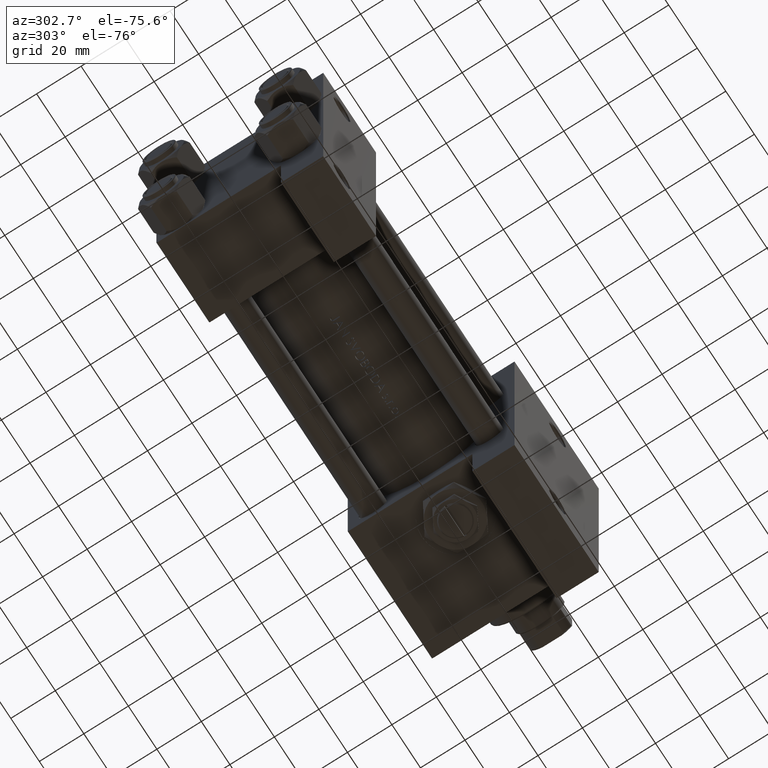
[diagram: clean part render]
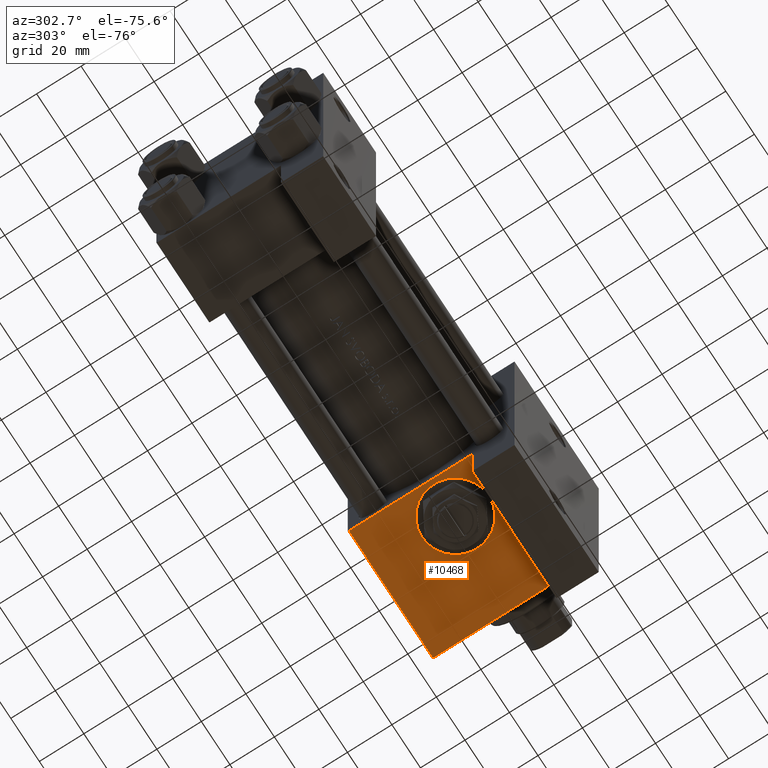
[diagram: same view with one face highlighted and labeled with its STEP entity id]
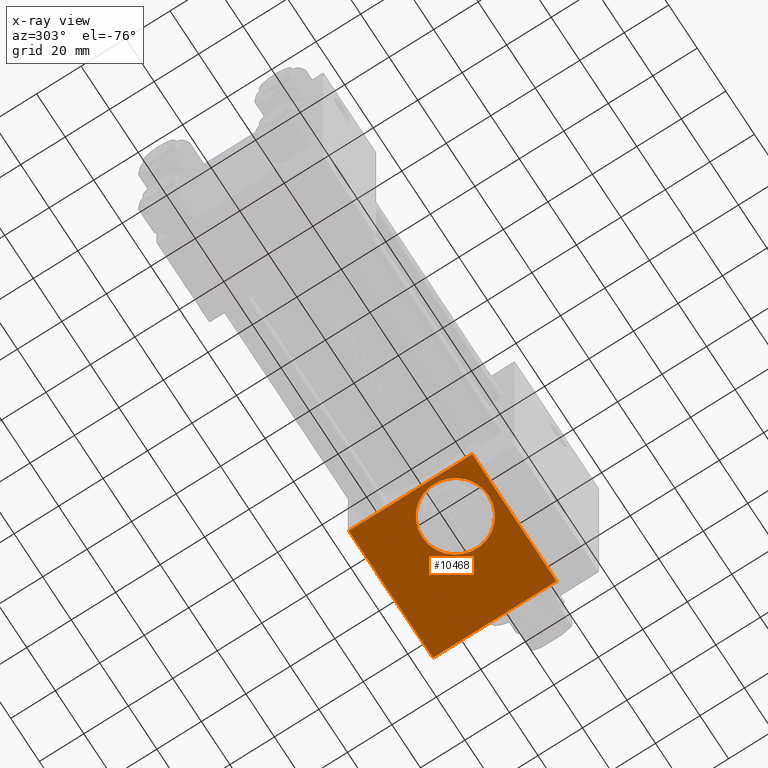
[diagram: x-ray of the same camera — body ghosted, the highlighted face saturated]
A machine part, auxiliary view. The second image highlights one B-rep face of the part: STEP entity #10468.
The next image is the same camera in x-ray: the body ghosted, the highlighted face saturated — about 0% of this face is hidden behind the body in this view.
In plain terms, the highlighted planar face has unit normal (0, 0, -1).
Its self-contained STEP definition (entity closure, byte-faithful):
#77 = CARTESIAN_POINT ( 'NONE',  ( 134.0000000000000000, 37.50000000000000000, 37.49999999999999289 ) ) ;
#354 = CARTESIAN_POINT ( 'NONE',  ( 151.0000000000000284, 37.50000000000000000, 0.000000000000000000 ) ) ;
#495 = ORIENTED_EDGE ( 'NONE', *, *, #37389, .T. ) ;
#733 = VECTOR ( 'NONE', #4471, 1000.000000000000000 ) ;
#1554 = DIRECTION ( 'NONE',  ( 0.000000000000000000, 1.000000000000000000, 0.000000000000000000 ) ) ;
#1844 = CARTESIAN_POINT ( 'NONE',  ( 151.0000000000000284, 37.50000000000000000, 15.00000000000002487 ) ) ;
#2923 = CARTESIAN_POINT ( 'NONE',  ( 193.0000000000000000, 37.50000000000000000, 37.49999999999999289 ) ) ;
#4221 = LINE ( 'NONE', #26894, #733 ) ;
#4471 = DIRECTION ( 'NONE',  ( 1.000000000000000000, 0.000000000000000000, 0.000000000000000000 ) ) ;
#4983 = PLANE ( 'NONE',  #11836 ) ;
#8613 = VERTEX_POINT ( 'NONE', #49181 ) ;
#10468 = ADVANCED_FACE ( 'NONE', ( #12444, #15933 ), #4983, .T. ) ;
#11570 = DIRECTION ( 'NONE',  ( 0.000000000000000000, 0.000000000000000000, 1.000000000000000000 ) ) ;
#11732 = CARTESIAN_POINT ( 'NONE',  ( 134.0000000000000000, 37.50000000000000000, -18.50000000000000000 ) ) ;
#11836 = AXIS2_PLACEMENT_3D ( 'NONE', #27648, #31139, #24159 ) ;
#12444 = FACE_BOUND ( 'NONE', #48830, .T. ) ;
#13329 = CIRCLE ( 'NONE', #22859, 15.00000000000002487 ) ;
#15515 = DIRECTION ( 'NONE',  ( 0.000000000000000000, 0.000000000000000000, -1.000000000000000000 ) ) ;
#15551 = DIRECTION ( 'NONE',  ( 0.000000000000000000, 1.000000000000000000, 0.000000000000000000 ) ) ;
#15933 = FACE_OUTER_BOUND ( 'NONE', #26388, .T. ) ;
#16742 = DIRECTION ( 'NONE',  ( 0.000000000000000000, 0.000000000000000000, 1.000000000000000000 ) ) ;
#17199 = VECTOR ( 'NONE', #15515, 1000.000000000000000 ) ;
#18472 = DIRECTION ( 'NONE',  ( -1.000000000000000000, 3.528251137579946599E-16, -0.000000000000000000 ) ) ;
#19460 = CIRCLE ( 'NONE', #33785, 15.00000000000002487 ) ;
#20318 = CARTESIAN_POINT ( 'NONE',  ( 151.0000000000000284, 37.50000000000000000, -15.00000000000002487 ) ) ;
#22059 = VECTOR ( 'NONE', #33328, 1000.000000000000000 ) ;
#22859 = AXIS2_PLACEMENT_3D ( 'NONE', #46379, #1554, #16742 ) ;
#23252 = LINE ( 'NONE', #77, #17199 ) ;
#24159 = DIRECTION ( 'NONE',  ( 0.000000000000000000, -0.000000000000000000, 1.000000000000000000 ) ) ;
#24258 = VERTEX_POINT ( 'NONE', #20318 ) ;
#24660 = ORIENTED_EDGE ( 'NONE', *, *, #44557, .T. ) ;
#26388 = EDGE_LOOP ( 'NONE', ( #41808, #24660, #26642, #495 ) ) ;
#26456 = CARTESIAN_POINT ( 'NONE',  ( 134.0000000000000000, 37.50000000000000000, -18.50000000000000355 ) ) ;
#26642 = ORIENTED_EDGE ( 'NONE', *, *, #38657, .T. ) ;
#26894 = CARTESIAN_POINT ( 'NONE',  ( 193.0000000000000000, 37.50000000000000000, 36.99999999999999289 ) ) ;
#27594 = VECTOR ( 'NONE', #18472, 1000.000000000000000 ) ;
#27648 = CARTESIAN_POINT ( 'NONE',  ( 193.0000000000000000, 37.50000000000000000, 37.49999999999999289 ) ) ;
#29989 = EDGE_CURVE ( 'NONE', #24258, #45750, #19460, .T. ) ;
#31139 = DIRECTION ( 'NONE',  ( -0.000000000000000000, 1.000000000000000000, 0.000000000000000000 ) ) ;
#33127 = ORIENTED_EDGE ( 'NONE', *, *, #37119, .F. ) ;
#33328 = DIRECTION ( 'NONE',  ( 0.000000000000000000, 0.000000000000000000, -1.000000000000000000 ) ) ;
#33785 = AXIS2_PLACEMENT_3D ( 'NONE', #354, #15551, #11570 ) ;
#34675 = ORIENTED_EDGE ( 'NONE', *, *, #29989, .F. ) ;
#35098 = EDGE_CURVE ( 'NONE', #8613, #37427, #23252, .T. ) ;
#37060 = LINE ( 'NONE', #2923, #22059 ) ;
#37119 = EDGE_CURVE ( 'NONE', #45750, #24258, #13329, .T. ) ;
#37389 = EDGE_CURVE ( 'NONE', #40975, #37427, #37415, .T. ) ;
#37415 = LINE ( 'NONE', #11732, #27594 ) ;
#37427 = VERTEX_POINT ( 'NONE', #26456 ) ;
#38657 = EDGE_CURVE ( 'NONE', #46080, #40975, #37060, .T. ) ;
#39030 = CARTESIAN_POINT ( 'NONE',  ( 193.0000000000000000, 37.49999999999997868, -18.50000000000000000 ) ) ;
#39905 = CARTESIAN_POINT ( 'NONE',  ( 193.0000000000000000, 37.50000000000000000, 36.99999999999999289 ) ) ;
#40975 = VERTEX_POINT ( 'NONE', #39030 ) ;
#41808 = ORIENTED_EDGE ( 'NONE', *, *, #35098, .F. ) ;
#44557 = EDGE_CURVE ( 'NONE', #8613, #46080, #4221, .T. ) ;
#45750 = VERTEX_POINT ( 'NONE', #1844 ) ;
#46080 = VERTEX_POINT ( 'NONE', #39905 ) ;
#46379 = CARTESIAN_POINT ( 'NONE',  ( 151.0000000000000284, 37.50000000000000000, 0.000000000000000000 ) ) ;
#48830 = EDGE_LOOP ( 'NONE', ( #33127, #34675 ) ) ;
#49181 = CARTESIAN_POINT ( 'NONE',  ( 134.0000000000000000, 37.50000000000000000, 36.99999999999999289 ) ) ;